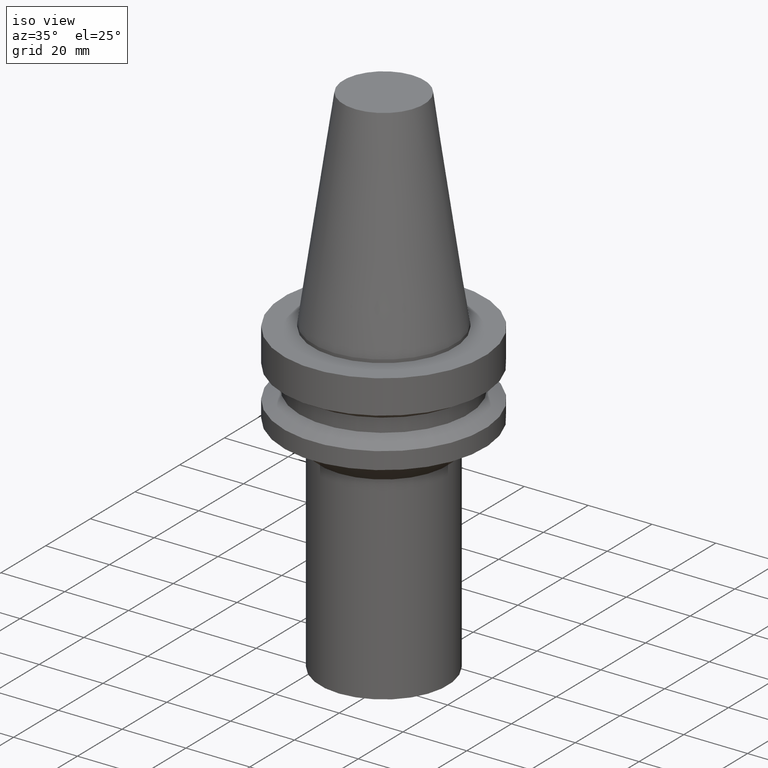
[diagram: clean part render]
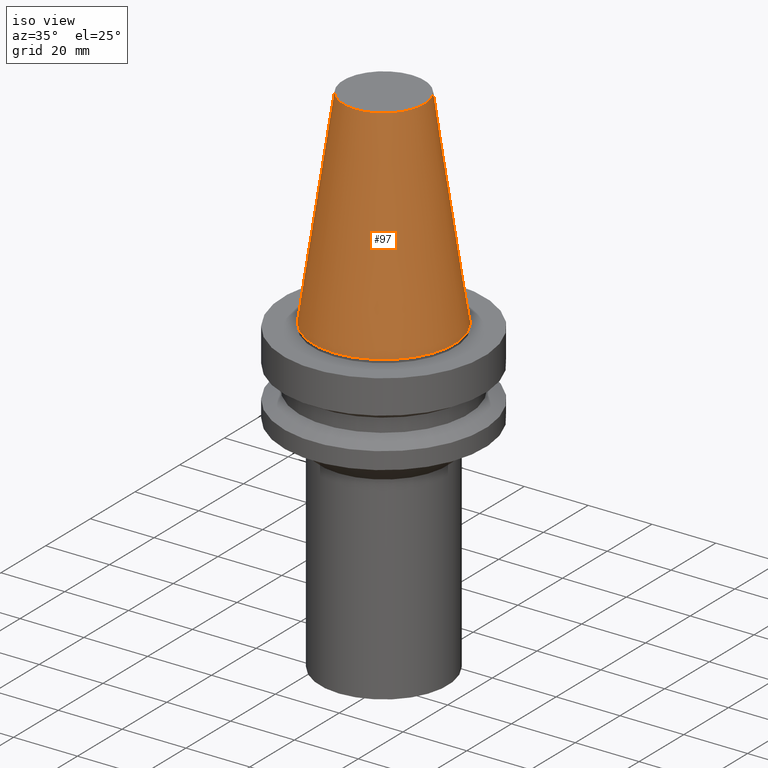
[diagram: same view with one face highlighted and labeled with its STEP entity id]
A machine part, iso view. The second image highlights one B-rep face of the part: STEP entity #97.
In plain terms, the highlighted conical surface has half-angle 8.297 deg.
Its self-contained STEP definition (entity closure, byte-faithful):
#56=EDGE_CURVE('Unnamed[1]',#145,#145,#146,.T.);
#97=ADVANCED_FACE('Unnamed[1]',(#208,#209),#210,.T.);
#112=EDGE_CURVE('Unnamed[1]',#232,#232,#233,.T.);
#145=VERTEX_POINT('',#264);
#146=CIRCLE('',#265,22.225);
#208=FACE_BOUND('',#341,.T.);
#209=FACE_BOUND('',#342,.T.);
#210=CONICAL_SURFACE('',#343,17.4562500000001,0.144812498238936);
#232=VERTEX_POINT('',#371);
#233=CIRCLE('',#372,12.6875000000001);
#264=CARTESIAN_POINT('',(1.71319921032766E-029,22.2250000000001,-2.8153873565375E-013));
#265=AXIS2_PLACEMENT_3D('',#398,#399,#400);
#341=EDGE_LOOP('',(#468));
#342=EDGE_LOOP('',(#469));
#343=AXIS2_PLACEMENT_3D('',#470,#471,#472);
#371=CARTESIAN_POINT('',(-4.00459503321185E-015,12.6875000000002,65.4000000000001));
#372=AXIS2_PLACEMENT_3D('',#496,#497,#498);
#398=CARTESIAN_POINT('',(1.65331138531142E-029,4.04099937765097E-014,-2.70006239588838E-013));
#399=DIRECTION('',(6.12323399573677E-017,-5.53589630679993E-016,-1.0));
#400=DIRECTION('',(2.90704357319019E-032,1.0,-5.53589630679993E-016));
#468=ORIENTED_EDGE('',*,*,#56,.F.);
#469=ORIENTED_EDGE('',*,*,#112,.T.);
#470=CARTESIAN_POINT('',(-2.00229751660592E-015,5.85123746997456E-014,32.6999999999999));
#471=DIRECTION('',(6.12323399573677E-017,-5.53589630679993E-016,-1.0));
#472=DIRECTION('',(2.90704357319019E-032,1.0,-5.53589630679993E-016));
#496=CARTESIAN_POINT('',(-4.00459503321185E-015,7.66147556229815E-014,65.4000000000001));
#497=DIRECTION('',(6.12323399573677E-017,-5.53589630679993E-016,-1.0));
#498=DIRECTION('',(2.90704357319019E-032,1.0,-5.53589630679993E-016));